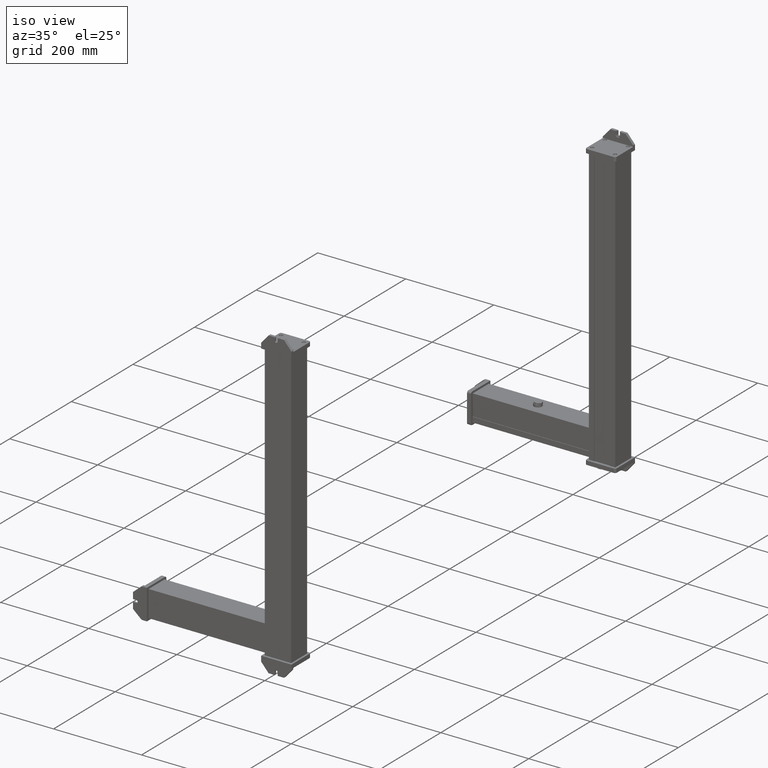
[diagram: clean part render]
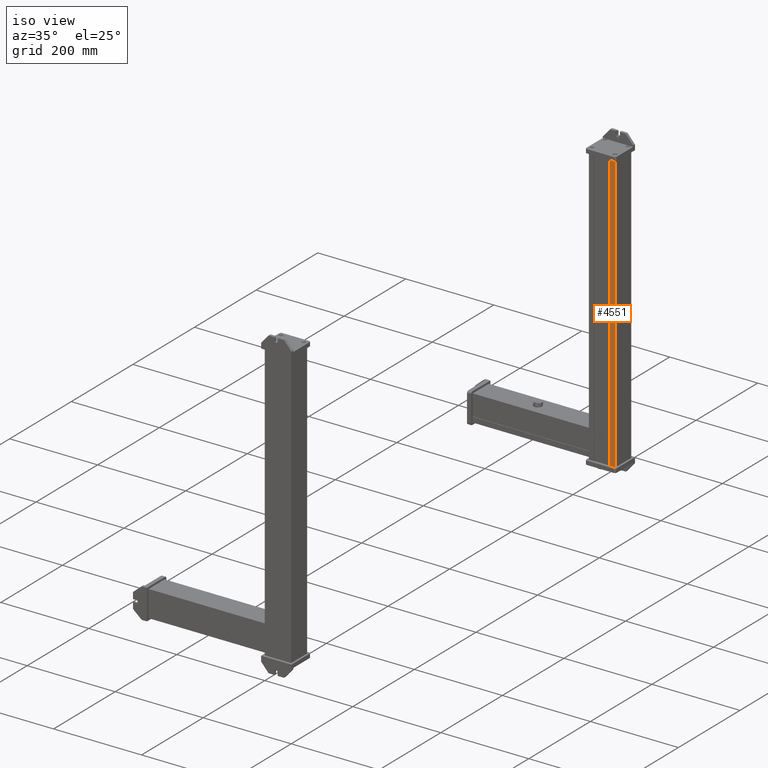
[diagram: same view with one face highlighted and labeled with its STEP entity id]
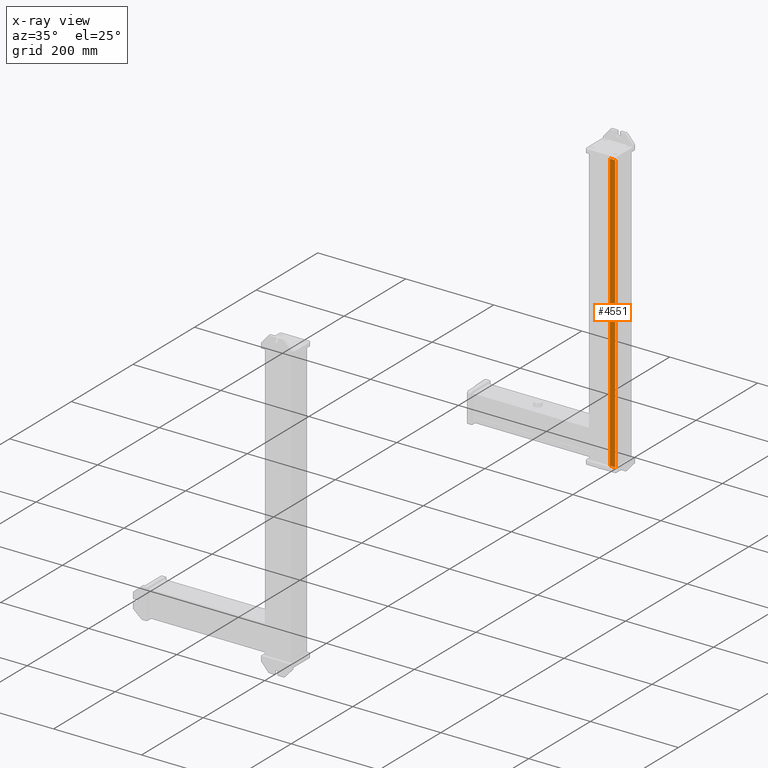
[diagram: x-ray of the same camera — body ghosted, the highlighted face saturated]
A machine part, iso view. The second image highlights one B-rep face of the part: STEP entity #4551.
The next image is the same camera in x-ray: the body ghosted, the highlighted face saturated — about 0% of this face is hidden behind the body in this view.
In plain terms, the highlighted planar face has unit normal (0, -1, 0).
Its self-contained STEP definition (entity closure, byte-faithful):
#4402=CARTESIAN_POINT('Axis2P3D Location',(60.,52.,0.)) ;
#4504=CARTESIAN_POINT('Vertex',(12.,52.,0.)) ;
#4507=CARTESIAN_POINT('Line Origine',(12.,52.,315.5)) ;
#4511=CARTESIAN_POINT('Vertex',(12.,52.,631.)) ;
#4526=CARTESIAN_POINT('Line Origine',(6.,52.,0.)) ;
#4530=CARTESIAN_POINT('Vertex',(3.5527136788E-015,52.,0.)) ;
#4533=CARTESIAN_POINT('Line Origine',(7.1054273576E-015,52.,315.5)) ;
#4537=CARTESIAN_POINT('Vertex',(3.5527136788E-015,52.,631.)) ;
#4540=CARTESIAN_POINT('Line Origine',(6.,52.,631.)) ;
#4403=DIRECTION('Axis2P3D Direction',(0.,1.,-0.)) ;
#4404=DIRECTION('Axis2P3D XDirection',(-1.,0.,0.)) ;
#4508=DIRECTION('Vector Direction',(0.,0.,1.)) ;
#4527=DIRECTION('Vector Direction',(-1.,0.,0.)) ;
#4534=DIRECTION('Vector Direction',(0.,0.,1.)) ;
#4541=DIRECTION('Vector Direction',(-1.,0.,0.)) ;
#4405=AXIS2_PLACEMENT_3D('Plane Axis2P3D',#4402,#4403,#4404) ;
#4546=ORIENTED_EDGE('',*,*,#4513,.F.) ;
#4547=ORIENTED_EDGE('',*,*,#4532,.T.) ;
#4548=ORIENTED_EDGE('',*,*,#4539,.T.) ;
#4549=ORIENTED_EDGE('',*,*,#4544,.F.) ;
#4509=VECTOR('Line Direction',#4508,1.) ;
#4528=VECTOR('Line Direction',#4527,1.) ;
#4535=VECTOR('Line Direction',#4534,1.) ;
#4542=VECTOR('Line Direction',#4541,1.) ;
#4551=ADVANCED_FACE('PartBody',(#4550),#4406,.T.) ;
#4513=EDGE_CURVE('',#4505,#4512,#4510,.T.) ;
#4532=EDGE_CURVE('',#4505,#4531,#4529,.T.) ;
#4539=EDGE_CURVE('',#4531,#4538,#4536,.T.) ;
#4544=EDGE_CURVE('',#4512,#4538,#4543,.T.) ;
#4545=EDGE_LOOP('',(#4546,#4547,#4548,#4549)) ;
#4550=FACE_OUTER_BOUND('',#4545,.T.) ;
#4510=LINE('Line',#4507,#4509) ;
#4529=LINE('Line',#4526,#4528) ;
#4536=LINE('Line',#4533,#4535) ;
#4543=LINE('Line',#4540,#4542) ;
#4406=PLANE('Plane',#4405) ;
#4505=VERTEX_POINT('',#4504) ;
#4512=VERTEX_POINT('',#4511) ;
#4531=VERTEX_POINT('',#4530) ;
#4538=VERTEX_POINT('',#4537) ;